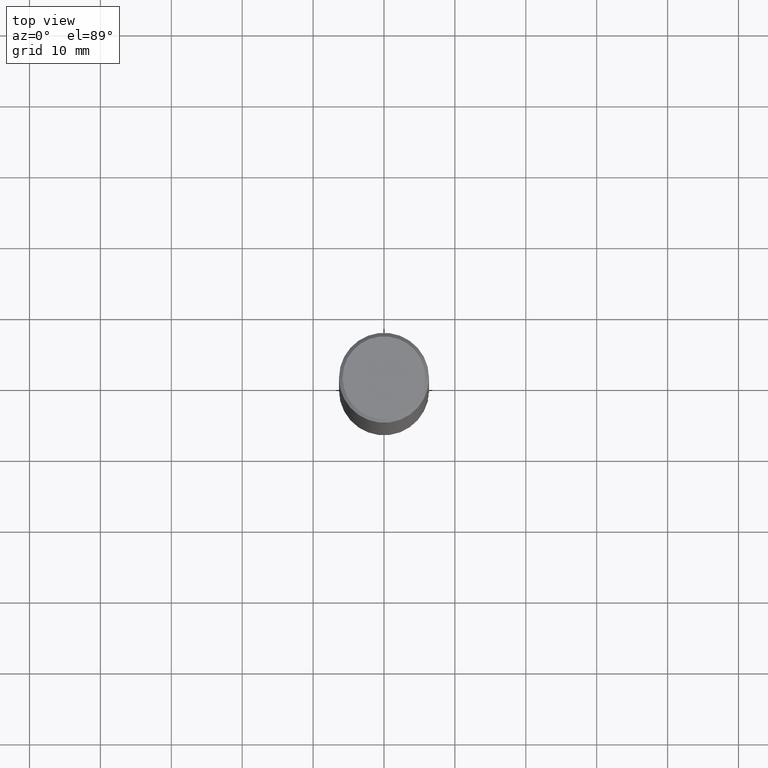
[diagram: clean part render]
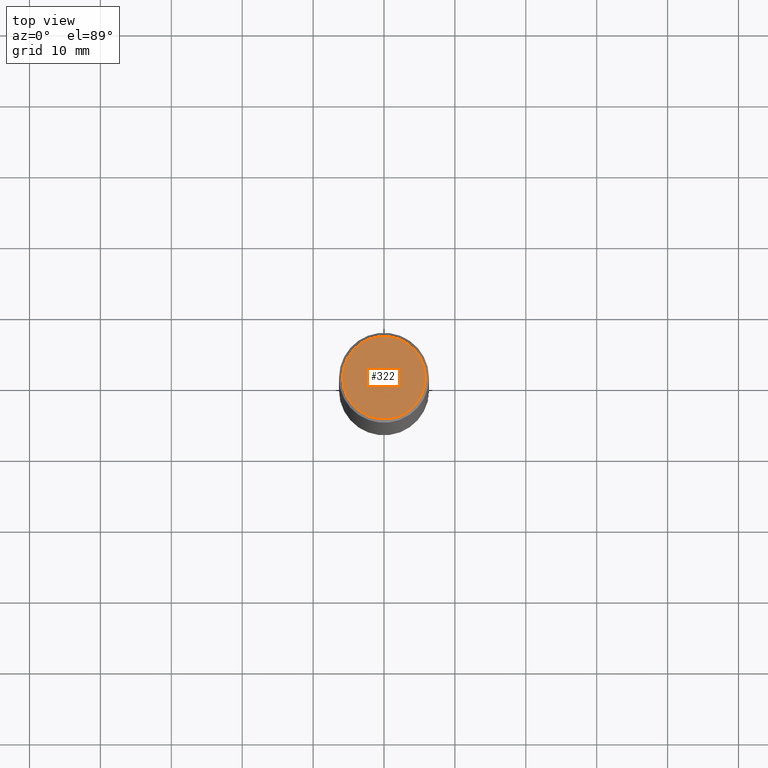
[diagram: same view with one face highlighted and labeled with its STEP entity id]
A machine part, top view. The second image highlights one B-rep face of the part: STEP entity #322.
In plain terms, the highlighted planar face has unit normal (0, -0, -1).
Its self-contained STEP definition (entity closure, byte-faithful):
#9 = DIRECTION ( 'NONE',  ( 2.438088387897960049E-29, -3.491481338843145188E-15, -1.000000000000000000 ) ) ;
#10 = ORIENTED_EDGE ( 'NONE', *, *, #254, .T. ) ;
#45 = ORIENTED_EDGE ( 'NONE', *, *, #222, .T. ) ;
#48 = CIRCLE ( 'NONE', #314, 0.2299999999999997602 ) ;
#53 = AXIS2_PLACEMENT_3D ( 'NONE', #213, #244, #332 ) ;
#60 = CARTESIAN_POINT ( 'NONE',  ( -0.2299999999999997602, 1.640996229256270941E-15, 4.268512490089056766E-18 ) ) ;
#89 = DIRECTION ( 'NONE',  ( -2.445468806185136597E-29, 3.491481338843145583E-15, 1.000000000000000000 ) ) ;
#106 = CIRCLE ( 'NONE', #53, 0.2299999999999997602 ) ;
#113 = CARTESIAN_POINT ( 'NONE',  ( 0.2299999999999997602, -1.681434332853597631E-15, 4.268512490111905999E-18 ) ) ;
#123 = AXIS2_PLACEMENT_3D ( 'NONE', #271, #9, #342 ) ;
#169 = PLANE ( 'NONE',  #123 ) ;
#188 = FACE_OUTER_BOUND ( 'NONE', #360, .T. ) ;
#192 = DIRECTION ( 'NONE',  ( 1.000000000000000000, -6.982962677686267499E-15, 4.876225828469313926E-29 ) ) ;
#212 = VERTEX_POINT ( 'NONE', #113 ) ;
#213 = CARTESIAN_POINT ( 'NONE',  ( -1.043851414335219820E-46, 1.490343170380447200E-32, 4.268512490100411279E-18 ) ) ;
#222 = EDGE_CURVE ( 'NONE', #212, #237, #106, .T. ) ;
#237 = VERTEX_POINT ( 'NONE', #60 ) ;
#244 = DIRECTION ( 'NONE',  ( -2.445468806185136597E-29, 3.491481338843145583E-15, 1.000000000000000000 ) ) ;
#254 = EDGE_CURVE ( 'NONE', #237, #212, #48, .T. ) ;
#271 = CARTESIAN_POINT ( 'NONE',  ( 1.606081415867839490E-15, 0.2299999999999997602, -8.009064516888724897E-16 ) ) ;
#314 = AXIS2_PLACEMENT_3D ( 'NONE', #333, #89, #192 ) ;
#322 = ADVANCED_FACE ( 'NONE', ( #188 ), #169, .F. ) ;
#332 = DIRECTION ( 'NONE',  ( 1.000000000000000000, -6.982962677686267499E-15, 4.876225828469313926E-29 ) ) ;
#333 = CARTESIAN_POINT ( 'NONE',  ( -1.043851414335219820E-46, 1.490343170380447200E-32, 4.268512490100411279E-18 ) ) ;
#342 = DIRECTION ( 'NONE',  ( -1.000000000000000000, 6.982962677686265922E-15, -4.876176775795935793E-29 ) ) ;
#360 = EDGE_LOOP ( 'NONE', ( #10, #45 ) ) ;